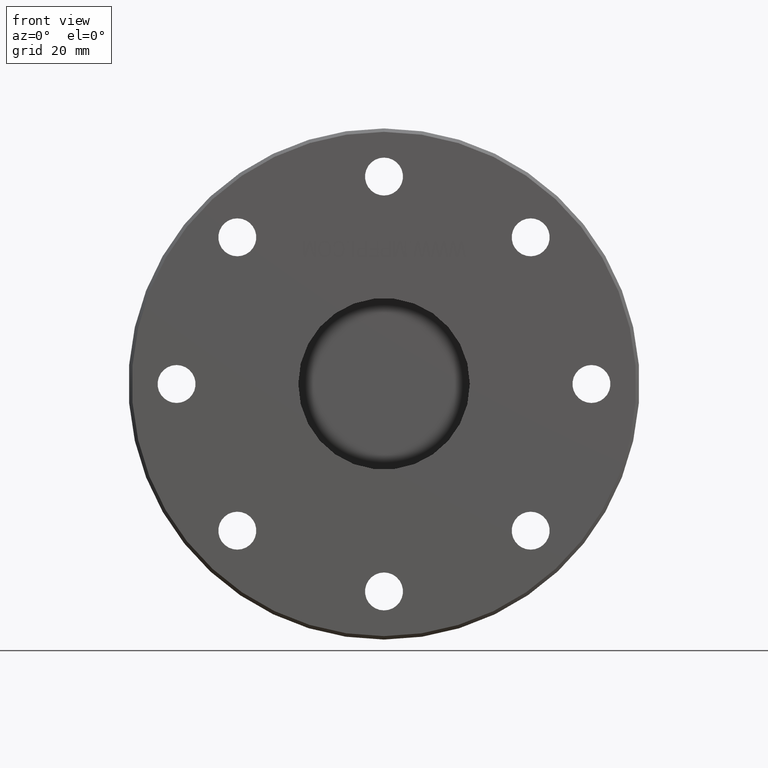
[diagram: clean part render]
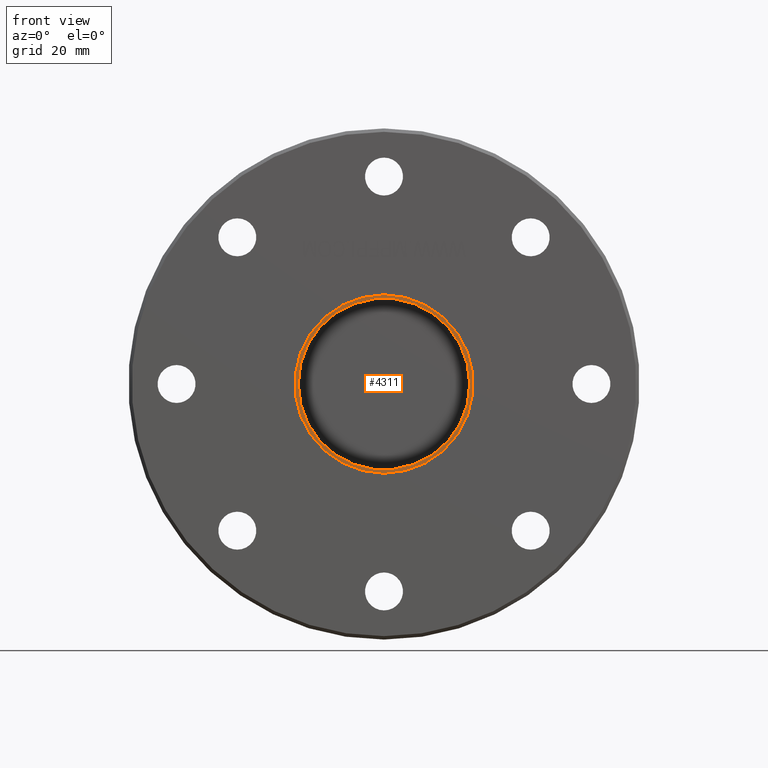
[diagram: same view with one face highlighted and labeled with its STEP entity id]
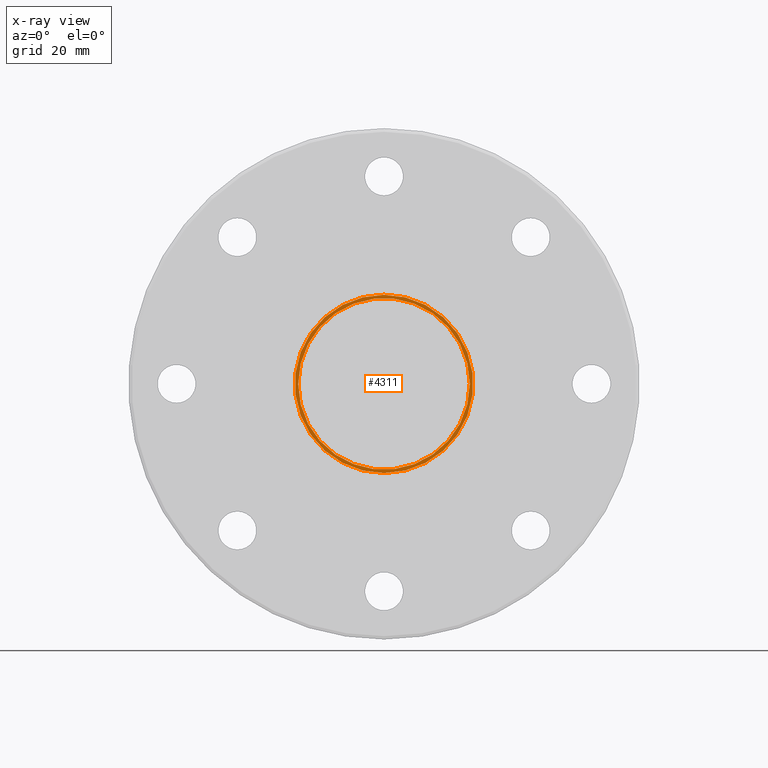
[diagram: x-ray of the same camera — body ghosted, the highlighted face saturated]
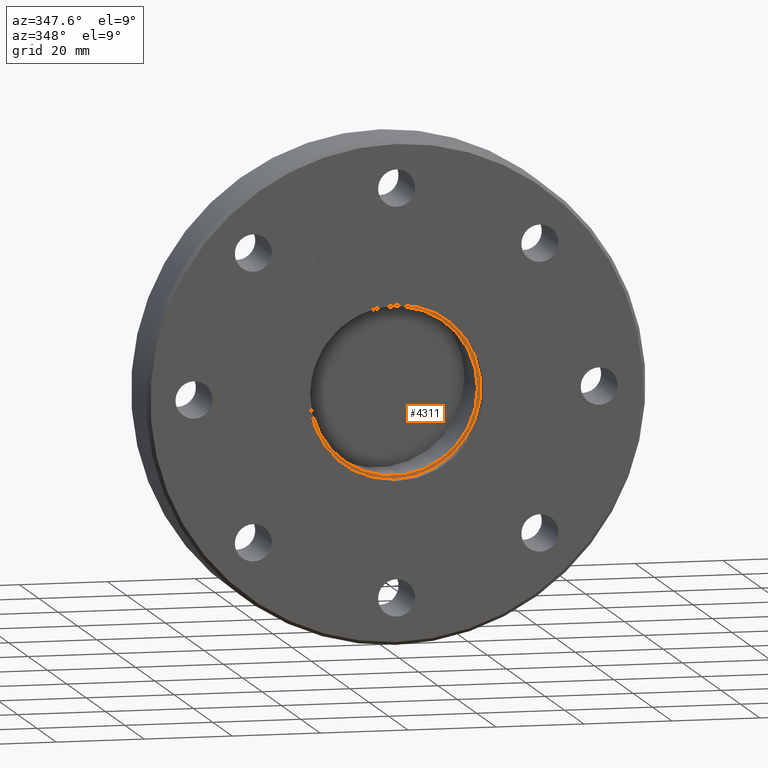
[diagram: same view with one face highlighted and labeled with its STEP entity id]
A machine part, front view. The second image highlights one B-rep face of the part: STEP entity #4311.
The next image is the same camera in x-ray: the body ghosted, the highlighted face saturated — about 0% of this face is hidden behind the body in this view.
A second angle (auxiliary view) of the same face is appended — the face is thin or edge-on in the first view.
In plain terms, the highlighted planar face has unit normal (0, 1, 0).
Its self-contained STEP definition (entity closure, byte-faithful):
#237 = DIRECTION ( 'NONE',  ( 0.0000000000000000000, -1.000000000000000000, 0.0000000000000000000 ) ) ;
#392 = CIRCLE ( 'NONE', #7812, 0.7500000000000008882 ) ;
#485 = EDGE_CURVE ( 'NONE', #3631, #8701, #392, .T. ) ;
#790 = VERTEX_POINT ( 'NONE', #4104 ) ;
#1331 = CARTESIAN_POINT ( 'NONE',  ( 0.7500000000000001110, -0.5599999999999993872, 9.184850993605150903E-17 ) ) ;
#1564 = EDGE_LOOP ( 'NONE', ( #3794, #7270 ) ) ;
#1625 = AXIS2_PLACEMENT_3D ( 'NONE', #5147, #6409, #2242 ) ;
#1985 = CIRCLE ( 'NONE', #5438, 0.7800000000000008038 ) ;
#2036 = DIRECTION ( 'NONE',  ( 0.0000000000000000000, -1.000000000000000000, 0.0000000000000000000 ) ) ;
#2102 = CARTESIAN_POINT ( 'NONE',  ( 0.0000000000000000000, -0.5599999999999993872, 0.0000000000000000000 ) ) ;
#2160 = AXIS2_PLACEMENT_3D ( 'NONE', #3732, #237, #7140 ) ;
#2208 = EDGE_CURVE ( 'NONE', #3398, #790, #1985, .T. ) ;
#2242 = DIRECTION ( 'NONE',  ( -0.0000000000000000000, 0.0000000000000000000, -1.000000000000000000 ) ) ;
#3398 = VERTEX_POINT ( 'NONE', #8756 ) ;
#3631 = VERTEX_POINT ( 'NONE', #1331 ) ;
#3732 = CARTESIAN_POINT ( 'NONE',  ( 0.0000000000000000000, -0.5599999999999993872, 0.0000000000000000000 ) ) ;
#3794 = ORIENTED_EDGE ( 'NONE', *, *, #6146, .F. ) ;
#3821 = CARTESIAN_POINT ( 'NONE',  ( 0.0000000000000000000, -0.5599999999999993872, 0.0000000000000000000 ) ) ;
#3876 = DIRECTION ( 'NONE',  ( 0.0000000000000000000, 0.0000000000000000000, 1.000000000000000000 ) ) ;
#3930 = CARTESIAN_POINT ( 'NONE',  ( -0.7500000000000001110, -0.5599999999999993872, 0.0000000000000000000 ) ) ;
#4104 = CARTESIAN_POINT ( 'NONE',  ( -9.552245033349358517E-17, -0.5599999999999993872, -0.7800000000000000266 ) ) ;
#4311 = ADVANCED_FACE ( 'NONE', ( #7340, #5381 ), #6984, .F. ) ;
#4550 = DIRECTION ( 'NONE',  ( 0.0000000000000000000, -1.000000000000000000, 0.0000000000000000000 ) ) ;
#4877 = DIRECTION ( 'NONE',  ( 0.0000000000000000000, 0.0000000000000000000, 1.000000000000000000 ) ) ;
#5147 = CARTESIAN_POINT ( 'NONE',  ( -0.7500000000000007772, -0.5599999999999993872, 0.0000000000000000000 ) ) ;
#5255 = EDGE_LOOP ( 'NONE', ( #5436, #8893 ) ) ;
#5293 = CIRCLE ( 'NONE', #5474, 0.7800000000000008038 ) ;
#5381 = FACE_OUTER_BOUND ( 'NONE', #5255, .T. ) ;
#5436 = ORIENTED_EDGE ( 'NONE', *, *, #2208, .T. ) ;
#5438 = AXIS2_PLACEMENT_3D ( 'NONE', #2102, #8308, #4877 ) ;
#5474 = AXIS2_PLACEMENT_3D ( 'NONE', #3821, #4550, #3876 ) ;
#6132 = CARTESIAN_POINT ( 'NONE',  ( 0.0000000000000000000, -0.5599999999999993872, 0.0000000000000000000 ) ) ;
#6146 = EDGE_CURVE ( 'NONE', #8701, #3631, #6858, .T. ) ;
#6409 = DIRECTION ( 'NONE',  ( 0.0000000000000000000, 1.000000000000000000, 0.0000000000000000000 ) ) ;
#6858 = CIRCLE ( 'NONE', #2160, 0.7500000000000008882 ) ;
#6984 = PLANE ( 'NONE',  #1625 ) ;
#7140 = DIRECTION ( 'NONE',  ( 0.0000000000000000000, 0.0000000000000000000, 1.000000000000000000 ) ) ;
#7270 = ORIENTED_EDGE ( 'NONE', *, *, #485, .F. ) ;
#7340 = FACE_BOUND ( 'NONE', #1564, .T. ) ;
#7812 = AXIS2_PLACEMENT_3D ( 'NONE', #6132, #2036, #8304 ) ;
#8075 = EDGE_CURVE ( 'NONE', #790, #3398, #5293, .T. ) ;
#8304 = DIRECTION ( 'NONE',  ( 0.0000000000000000000, 0.0000000000000000000, 1.000000000000000000 ) ) ;
#8308 = DIRECTION ( 'NONE',  ( 0.0000000000000000000, -1.000000000000000000, 0.0000000000000000000 ) ) ;
#8701 = VERTEX_POINT ( 'NONE', #3930 ) ;
#8756 = CARTESIAN_POINT ( 'NONE',  ( 0.0000000000000000000, -0.5599999999999993872, 0.7800000000000008038 ) ) ;
#8893 = ORIENTED_EDGE ( 'NONE', *, *, #8075, .T. ) ;